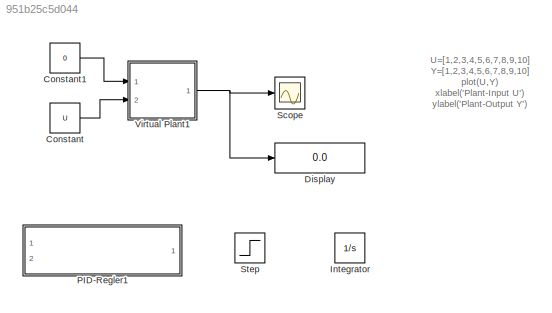
MODEL slx_951b25c5d044
KIND model
CONFIG AbsTol = auto
CONFIG FixedStep = 0.1
CONFIG MaxStep = auto
CONFIG MinStep = auto
CONFIG RelTol = 1e-3
CONFIG SampleTimeConstraint = Unconstrained
CONFIG Solver = ode1
CONFIG SolverMode = Auto
CONFIG SolverName = ode1
CONFIG StartTime = 0.0
CONFIG StopTime = 20
BLOCK [Constant] Constant
  Value = U
BLOCK [Constant] Constant1
  Value = 0
BLOCK [Display] Display
  Decimation = 1
  Ports = [1]
BLOCK [Integrator] Integrator
  Ports = [1, 1]
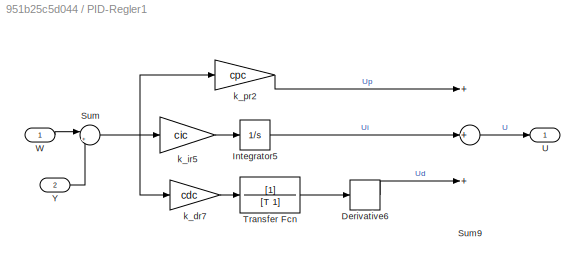
BLOCK [SubSystem] PID-Regler1
  Ports = [2, 1]
  RequestExecContextInheritance = off
  Variant = off
BLOCK [Derivative] PID-Regler1/Derivative6
BLOCK [Integrator] PID-Regler1/Integrator5
  Ports = [1, 1]
BLOCK [Sum] PID-Regler1/Sum
  IconShape = round
  InputSameDT = off
  Inputs = |+-
  OutDataTypeStr = Inherit: Inherit via internal rule
  Ports = [2, 1]
  SaturateOnIntegerOverflow = off
BLOCK [Sum] PID-Regler1/Sum9
  InputSameDT = off
  Inputs = +++
  OutDataTypeStr = Inherit: Inherit via internal rule
  Ports = [3, 1]
  SaturateOnIntegerOverflow = off
BLOCK [TransferFcn] PID-Regler1/Transfer Fcn
  Denominator = [T 1]
BLOCK [Outport] PID-Regler1/U
  IconDisplay = Port number
BLOCK [Inport] PID-Regler1/W
  IconDisplay = Port number
BLOCK [Inport] PID-Regler1/Y
  IconDisplay = Port number
  Port = 2
BLOCK [Gain] PID-Regler1/k_dr7
  Gain = cdc
  OutDataTypeStr = Inherit: Inherit via internal rule
  ParamDataTypeStr = Inherit: Inherit via internal rule
  SaturateOnIntegerOverflow = off
BLOCK [Gain] PID-Regler1/k_ir5
  Gain = cic
  OutDataTypeStr = Inherit: Inherit via internal rule
  ParamDataTypeStr = Inherit: Inherit via internal rule
  SaturateOnIntegerOverflow = off
BLOCK [Gain] PID-Regler1/k_pr2
  Gain = cpc
  OutDataTypeStr = Inherit: Inherit via internal rule
  ParamDataTypeStr = Inherit: Inherit via internal rule
  SaturateOnIntegerOverflow = off
BLOCK [Scope] Scope
  Ports = [1]
  ScopeSpecificationString = Simulink.scopes.TimeScopeBlockCfg('CurrentConfiguration', extmgr.ConfigurationSet(extmgr.Configuration('Core','General UI',true),extmgr.Configuration('Core','Source UI',true),extmgr.Configuration('Sources','WiredSimulink',true,'DataLoggingVariableName','Y','DataLogging',true,'DataLoggingSaveFormat','Structure'),extmgr.Configuration('Visuals','Time Domain',true,'SerializedDisplays',{struct('MinYLim...<+1443ch>
BLOCK [Step] Step
  SampleTime = 0
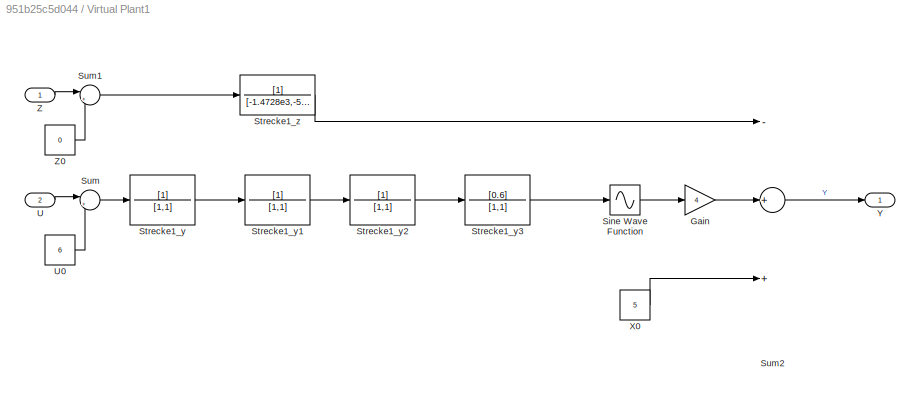
BLOCK [SubSystem] Virtual Plant1
  Ports = [2, 1]
  RequestExecContextInheritance = off
  Variant = off
BLOCK [Gain] Virtual Plant1/Gain
  Gain = 4
  OutDataTypeStr = Inherit: Inherit via internal rule
  ParamDataTypeStr = Inherit: Inherit via internal rule
  SaturateOnIntegerOverflow = off
BLOCK [Sin] Virtual Plant1/Sine Wave Function
  Ports = [1, 1]
  SampleTime = 0
  TimeSource = Use external signal
BLOCK [TransferFcn] Virtual Plant1/Strecke1_y
  Denominator = [1,1]
BLOCK [TransferFcn] Virtual Plant1/Strecke1_y1
  Denominator = [1,1]
BLOCK [TransferFcn] Virtual Plant1/Strecke1_y2
  Denominator = [1,1]
BLOCK [TransferFcn] Virtual Plant1/Strecke1_y3
  Denominator = [1,1]
  Numerator = [0.6]
BLOCK [TransferFcn] Virtual Plant1/Strecke1_z
  Denominator = [-1.4728e3,-534.157,-137.5577,-4.4778]
BLOCK [Sum] Virtual Plant1/Sum
  IconShape = round
  InputSameDT = off
  Inputs = |+-
  OutDataTypeStr = Inherit: Inherit via internal rule
  Ports = [2, 1]
  SaturateOnIntegerOverflow = off
BLOCK [Sum] Virtual Plant1/Sum1
  IconShape = round
  InputSameDT = off
  Inputs = |+-
  OutDataTypeStr = Inherit: Inherit via internal rule
  Ports = [2, 1]
  SaturateOnIntegerOverflow = off
BLOCK [Sum] Virtual Plant1/Sum2
  InputSameDT = off
  Inputs = -++
  OutDataTypeStr = Inherit: Inherit via internal rule
  Ports = [3, 1]
  SaturateOnIntegerOverflow = off
BLOCK [Inport] Virtual Plant1/U
  IconDisplay = Port number
  Port = 2
BLOCK [Constant] Virtual Plant1/U0
  Value = 6
BLOCK [Constant] Virtual Plant1/X0
  Value = 5
BLOCK [Outport] Virtual Plant1/Y
  IconDisplay = Port number
BLOCK [Inport] Virtual Plant1/Z
  IconDisplay = Port number
BLOCK [Constant] Virtual Plant1/Z0
  Value = 0
ANNOTATION (root): U=[1,2,3,4,5,6,7,8,9,10] Y=[1,2,3,4,5,6,7,8,9,10] plot(U,Y) xlabel('Plant-Input U') ylabel('Plant-Output Y')
LINE Constant1:1 -> Virtual Plant1:1
LINE Constant:1 -> Virtual Plant1:2
LINE PID-Regler1/Derivative6:1 -> PID-Regler1/Sum9:3
LINE PID-Regler1/Integrator5:1 -> PID-Regler1/Sum9:2
LINE PID-Regler1/Sum9:1 -> PID-Regler1/U:1
NET PID-Regler1/Sum:1 -> PID-Regler1/k_dr7:1, PID-Regler1/k_ir5:1, PID-Regler1/k_pr2:1
LINE PID-Regler1/Transfer Fcn:1 -> PID-Regler1/Derivative6:1
LINE PID-Regler1/W:1 -> PID-Regler1/Sum:1
LINE PID-Regler1/Y:1 -> PID-Regler1/Sum:2
LINE PID-Regler1/k_dr7:1 -> PID-Regler1/Transfer Fcn:1
LINE PID-Regler1/k_ir5:1 -> PID-Regler1/Integrator5:1
LINE PID-Regler1/k_pr2:1 -> PID-Regler1/Sum9:1
LINE Virtual Plant1/Gain:1 -> Virtual Plant1/Sum2:2
LINE Virtual Plant1/Sine Wave Function:1 -> Virtual Plant1/Gain:1
LINE Virtual Plant1/Strecke1_y1:1 -> Virtual Plant1/Strecke1_y2:1
LINE Virtual Plant1/Strecke1_y2:1 -> Virtual Plant1/Strecke1_y3:1
LINE Virtual Plant1/Strecke1_y3:1 -> Virtual Plant1/Sine Wave Function:1
LINE Virtual Plant1/Strecke1_y:1 -> Virtual Plant1/Strecke1_y1:1
LINE Virtual Plant1/Strecke1_z:1 -> Virtual Plant1/Sum2:1
LINE Virtual Plant1/Sum1:1 -> Virtual Plant1/Strecke1_z:1
LINE Virtual Plant1/Sum2:1 -> Virtual Plant1/Y:1
LINE Virtual Plant1/Sum:1 -> Virtual Plant1/Strecke1_y:1
LINE Virtual Plant1/U0:1 -> Virtual Plant1/Sum:2
LINE Virtual Plant1/U:1 -> Virtual Plant1/Sum:1
LINE Virtual Plant1/X0:1 -> Virtual Plant1/Sum2:3
LINE Virtual Plant1/Z0:1 -> Virtual Plant1/Sum1:2
LINE Virtual Plant1/Z:1 -> Virtual Plant1/Sum1:1
NET Virtual Plant1:1 -> Display:1, Scope:1
note: NET lines group one-source signal fan-out (src -> all destinations, sorted); 1:1 wires keep LINE
